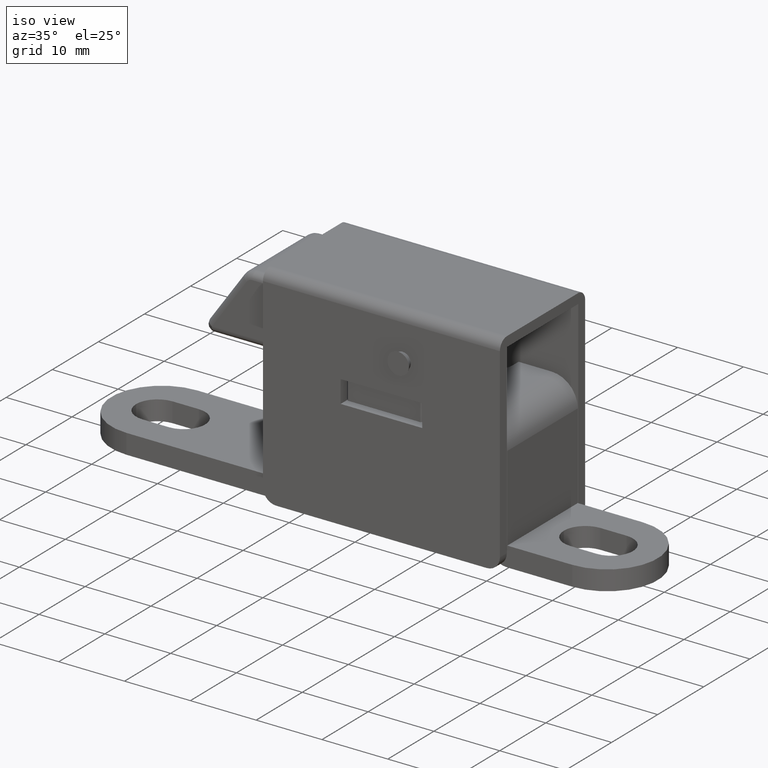
[diagram: clean part render]
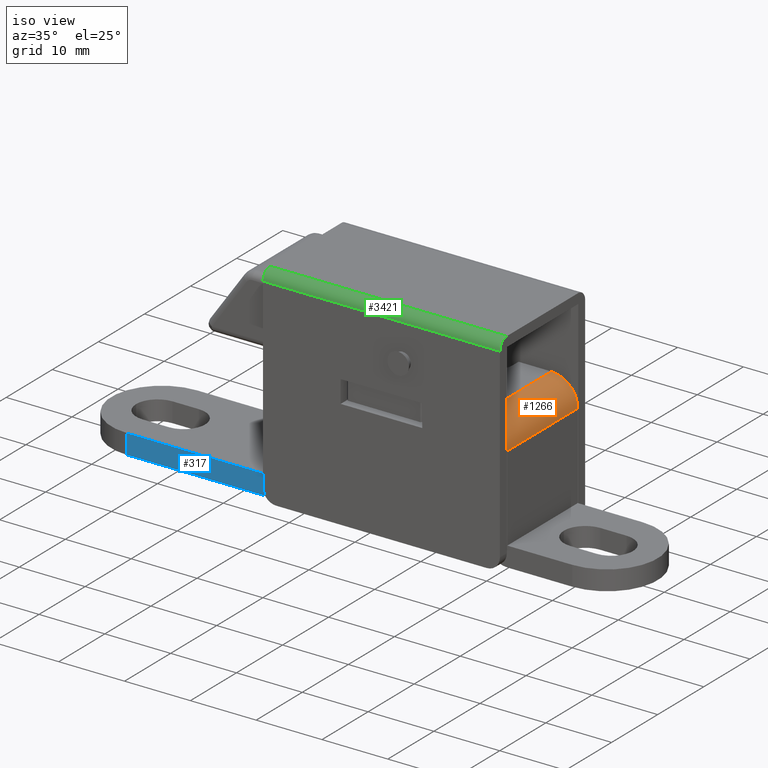
[diagram: same view with three faces highlighted in distinct colors, each labeled with its STEP entity id]
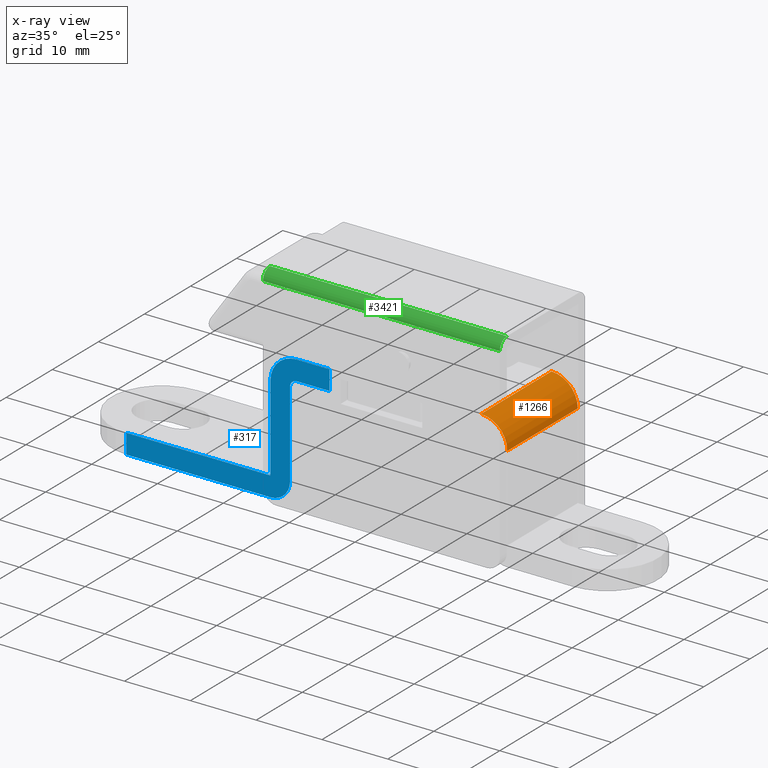
[diagram: x-ray of the same camera — body ghosted, the three highlighted faces saturated]
A machine part, iso view with three faces highlighted in distinct colors.
The next image is the same camera in x-ray (body ghosted, the three faces saturated) — at least one of them is partly hidden behind the body in this view.
Their STEP definitions:

[orange] entity #1266 — the highlighted cylindrical surface (edge-blend (fillet) strip) has radius 4 mm, axis along (-0, -1, -0).
#109 = ORIENTED_EDGE ( 'NONE', *, *, #1790, .T. ) ;
#385 = VECTOR ( 'NONE', #720, 1000.000000000000000 ) ;
#525 = ORIENTED_EDGE ( 'NONE', *, *, #2471, .T. ) ;
#529 = LINE ( 'NONE', #5121, #385 ) ;
#559 = CARTESIAN_POINT ( 'NONE',  ( -8.499999999690000900, -7.650000000000045700, 13.00000000000000200 ) ) ;
#566 = DIRECTION ( 'NONE',  ( 0.0000000000000000000, 0.0000000000000000000, -1.000000000000000000 ) ) ;
#615 = DIRECTION ( 'NONE',  ( 0.0000000000000000000, 1.000000000000000000, 0.0000000000000000000 ) ) ;
#720 = DIRECTION ( 'NONE',  ( -0.0000000000000000000, -1.000000000000000000, -0.0000000000000000000 ) ) ;
#748 = CYLINDRICAL_SURFACE ( 'NONE', #5328, 4.000000000000000000 ) ;
#765 = VERTEX_POINT ( 'NONE', #559 ) ;
#786 = DIRECTION ( 'NONE',  ( 0.0000000000000000000, 1.000000000000000000, 0.0000000000000000000 ) ) ;
#832 = CARTESIAN_POINT ( 'NONE',  ( -8.499999999700001800, -992.3500000000000200, 13.00000000000000200 ) ) ;
#986 = CARTESIAN_POINT ( 'NONE',  ( -12.49999999970000200, -992.3500000000000200, 13.00000000000000200 ) ) ;
#1266 = ADVANCED_FACE ( 'NONE', ( #2267 ), #748, .T. ) ;
#1492 = CIRCLE ( 'NONE', #5600, 4.000000000000000000 ) ;
#1716 = CARTESIAN_POINT ( 'NONE',  ( -12.49999999970000200, 7.649999999999966600, 17.00000000000000000 ) ) ;
#1790 = EDGE_CURVE ( 'NONE', #2797, #2734, #1492, .T. ) ;
#2119 = CARTESIAN_POINT ( 'NONE',  ( -12.49999999970000200, -7.650000000000023400, 17.00000000000000000 ) ) ;
#2160 = DIRECTION ( 'NONE',  ( 0.0000000000000000000, 0.0000000000000000000, -1.000000000000000000 ) ) ;
#2267 = FACE_OUTER_BOUND ( 'NONE', #5567, .T. ) ;
#2471 = EDGE_CURVE ( 'NONE', #765, #2797, #3440, .T. ) ;
#2499 = CARTESIAN_POINT ( 'NONE',  ( -12.49999999970000200, 7.649999999999934600, 13.00000000000000200 ) ) ;
#2734 = VERTEX_POINT ( 'NONE', #1716 ) ;
#2797 = VERTEX_POINT ( 'NONE', #5556 ) ;
#3318 = CIRCLE ( 'NONE', #4567, 4.000000000000000000 ) ;
#3440 = LINE ( 'NONE', #832, #3995 ) ;
#3475 = CARTESIAN_POINT ( 'NONE',  ( -12.49999999970000200, -7.650000000000045700, 13.00000000000000200 ) ) ;
#3747 = DIRECTION ( 'NONE',  ( -0.0000000000000000000, -1.000000000000000000, -0.0000000000000000000 ) ) ;
#3912 = DIRECTION ( 'NONE',  ( 0.0000000000000000000, 0.0000000000000000000, -1.000000000000000000 ) ) ;
#3995 = VECTOR ( 'NONE', #615, 1000.000000000000000 ) ;
#4409 = EDGE_CURVE ( 'NONE', #2734, #4485, #529, .T. ) ;
#4485 = VERTEX_POINT ( 'NONE', #2119 ) ;
#4567 = AXIS2_PLACEMENT_3D ( 'NONE', #3475, #786, #3912 ) ;
#5101 = EDGE_CURVE ( 'NONE', #4485, #765, #3318, .T. ) ;
#5121 = CARTESIAN_POINT ( 'NONE',  ( -12.49999999970000200, -9.300000000000000700, 17.00000000000000000 ) ) ;
#5328 = AXIS2_PLACEMENT_3D ( 'NONE', #986, #3747, #566 ) ;
#5526 = ORIENTED_EDGE ( 'NONE', *, *, #5101, .T. ) ;
#5556 = CARTESIAN_POINT ( 'NONE',  ( -8.499999999690000900, 7.649999999999934600, 13.00000000000000200 ) ) ;
#5567 = EDGE_LOOP ( 'NONE', ( #5526, #525, #109, #5586 ) ) ;
#5586 = ORIENTED_EDGE ( 'NONE', *, *, #4409, .T. ) ;
#5588 = DIRECTION ( 'NONE',  ( -0.0000000000000000000, -1.000000000000000000, -0.0000000000000000000 ) ) ;
#5600 = AXIS2_PLACEMENT_3D ( 'NONE', #2499, #5588, #2160 ) ;

[blue] entity #317 — the highlighted planar face has unit normal (0, 1, 0).
#10 = DIRECTION ( 'NONE',  ( 0.0000000000000000000, 1.000000000000000000, 0.0000000000000000000 ) ) ;
#114 = CARTESIAN_POINT ( 'NONE',  ( -43.29999999969999900, -7.650000000000000400, 14.00000000000000000 ) ) ;
#122 = DIRECTION ( 'NONE',  ( -0.0000000000000000000, 1.000000000000000000, 0.0000000000000000000 ) ) ;
#190 = VECTOR ( 'NONE', #626, 1000.000000000000000 ) ;
#209 = VERTEX_POINT ( 'NONE', #1792 ) ;
#263 = ORIENTED_EDGE ( 'NONE', *, *, #2798, .T. ) ;
#275 = VERTEX_POINT ( 'NONE', #3408 ) ;
#280 = ORIENTED_EDGE ( 'NONE', *, *, #1033, .F. ) ;
#286 = EDGE_CURVE ( 'NONE', #4209, #2113, #3307, .T. ) ;
#317 = ADVANCED_FACE ( 'NONE', ( #1963 ), #620, .F. ) ;
#404 = VERTEX_POINT ( 'NONE', #3277 ) ;
#435 = AXIS2_PLACEMENT_3D ( 'NONE', #2699, #10, #3145 ) ;
#496 = EDGE_CURVE ( 'NONE', #3436, #209, #2642, .T. ) ;
#546 = AXIS2_PLACEMENT_3D ( 'NONE', #2802, #122, #1950 ) ;
#620 = PLANE ( 'NONE',  #546 ) ;
#626 = DIRECTION ( 'NONE',  ( 1.000000000000000000, 0.0000000000000000000, -0.0000000000000000000 ) ) ;
#678 = DIRECTION ( 'NONE',  ( 1.000000000000000000, 0.0000000000000000000, 0.0000000000000000000 ) ) ;
#704 = DIRECTION ( 'NONE',  ( 0.0000000000000000000, -0.0000000000000000000, 1.000000000000000000 ) ) ;
#730 = LINE ( 'NONE', #3837, #3110 ) ;
#779 = DIRECTION ( 'NONE',  ( 0.0000000000000000000, 1.000000000000000000, 0.0000000000000000000 ) ) ;
#870 = VERTEX_POINT ( 'NONE', #4874 ) ;
#915 = CARTESIAN_POINT ( 'NONE',  ( -44.49999999969117700, -7.650000000000000400, 4.913546421588440400E-011 ) ) ;
#1007 = VERTEX_POINT ( 'NONE', #5704 ) ;
#1027 = LINE ( 'NONE', #3335, #2203 ) ;
#1033 = EDGE_CURVE ( 'NONE', #2254, #4209, #1491, .T. ) ;
#1084 = DIRECTION ( 'NONE',  ( -0.0000000000000000000, 0.0000000000000000000, -1.000000000000000000 ) ) ;
#1141 = VECTOR ( 'NONE', #678, 1000.000000000000000 ) ;
#1193 = EDGE_CURVE ( 'NONE', #2113, #5698, #4958, .T. ) ;
#1239 = DIRECTION ( 'NONE',  ( 0.0000000000000000000, 0.0000000000000000000, -1.000000000000000000 ) ) ;
#1277 = LINE ( 'NONE', #2375, #3660 ) ;
#1309 = CARTESIAN_POINT ( 'NONE',  ( -66.34999999964740900, -7.650000000000000400, -3.000000000000000000 ) ) ;
#1401 = ORIENTED_EDGE ( 'NONE', *, *, #496, .F. ) ;
#1491 = CIRCLE ( 'NONE', #3973, 3.000000000000000000 ) ;
#1517 = CARTESIAN_POINT ( 'NONE',  ( -69.43499999959999500, -7.650000000000000400, -3.000000000000000000 ) ) ;
#1622 = ORIENTED_EDGE ( 'NONE', *, *, #2012, .F. ) ;
#1688 = CARTESIAN_POINT ( 'NONE',  ( -40.49999999970000200, -7.650000000000045700, 13.00000000000000200 ) ) ;
#1740 = CARTESIAN_POINT ( 'NONE',  ( -44.49999999970000200, -7.650000000000045700, -3.000000000000497400 ) ) ;
#1792 = CARTESIAN_POINT ( 'NONE',  ( -41.49999999970000900, -7.650000000000034100, 13.00000000000000200 ) ) ;
#1950 = DIRECTION ( 'NONE',  ( 0.0000000000000000000, -0.0000000000000000000, 1.000000000000000000 ) ) ;
#1963 = FACE_OUTER_BOUND ( 'NONE', #3303, .T. ) ;
#2012 = EDGE_CURVE ( 'NONE', #3633, #1007, #730, .T. ) ;
#2113 = VERTEX_POINT ( 'NONE', #1309 ) ;
#2180 = LINE ( 'NONE', #2908, #1141 ) ;
#2203 = VECTOR ( 'NONE', #3406, 1000.000000000000000 ) ;
#2254 = VERTEX_POINT ( 'NONE', #2579 ) ;
#2264 = VECTOR ( 'NONE', #1084, 1000.000000000000000 ) ;
#2375 = CARTESIAN_POINT ( 'NONE',  ( -35.49999999989999800, -7.650000000000000400, -5.000000000000000000 ) ) ;
#2413 = DIRECTION ( 'NONE',  ( 0.0000000000000000000, -0.0000000000000000000, 1.000000000000000000 ) ) ;
#2579 = CARTESIAN_POINT ( 'NONE',  ( -41.49999999970000200, -7.650000000000034100, -9.952151490593335800E-013 ) ) ;
#2642 = CIRCLE ( 'NONE', #3417, 1.000000000000000900 ) ;
#2685 = EDGE_CURVE ( 'NONE', #275, #870, #1027, .T. ) ;
#2699 = CARTESIAN_POINT ( 'NONE',  ( -40.49999999970000200, -7.650000000000045700, 13.00000000000000200 ) ) ;
#2710 = LINE ( 'NONE', #114, #190 ) ;
#2766 = DIRECTION ( 'NONE',  ( -1.000000000000000000, -0.0000000000000000000, -0.0000000000000000000 ) ) ;
#2798 = EDGE_CURVE ( 'NONE', #3436, #404, #2710, .T. ) ;
#2802 = CARTESIAN_POINT ( 'NONE',  ( -69.43499999959999500, -7.650000000000000400, -5.000000000000000000 ) ) ;
#2908 = CARTESIAN_POINT ( 'NONE',  ( -69.43499999959999500, -7.650000000000000400, 7.364595044911936800E-011 ) ) ;
#3110 = VECTOR ( 'NONE', #704, 1000.000000000000000 ) ;
#3143 = CARTESIAN_POINT ( 'NONE',  ( -66.34999999965000900, -7.650000000000000400, 7.364597335920968900E-011 ) ) ;
#3145 = DIRECTION ( 'NONE',  ( 0.0000000000000000000, 0.0000000000000000000, -1.000000000000000000 ) ) ;
#3277 = CARTESIAN_POINT ( 'NONE',  ( -35.49999999989921000, -7.650000000000000400, 13.99999999999999800 ) ) ;
#3302 = ORIENTED_EDGE ( 'NONE', *, *, #4933, .F. ) ;
#3303 = EDGE_LOOP ( 'NONE', ( #3860, #4056, #280, #3341, #1401, #263, #4526, #4137, #3336, #1622, #3302 ) ) ;
#3307 = LINE ( 'NONE', #1517, #5632 ) ;
#3335 = CARTESIAN_POINT ( 'NONE',  ( -9.699999999679999300, -7.650000000000000400, 17.00000000000000000 ) ) ;
#3336 = ORIENTED_EDGE ( 'NONE', *, *, #4674, .F. ) ;
#3341 = ORIENTED_EDGE ( 'NONE', *, *, #4365, .F. ) ;
#3406 = DIRECTION ( 'NONE',  ( -1.000000000000000000, 0.0000000000000000000, -0.0000000000000000000 ) ) ;
#3408 = CARTESIAN_POINT ( 'NONE',  ( -35.49999999989921000, -7.650000000000000400, 17.00000000000000000 ) ) ;
#3417 = AXIS2_PLACEMENT_3D ( 'NONE', #1688, #4350, #1239 ) ;
#3436 = VERTEX_POINT ( 'NONE', #3847 ) ;
#3467 = DIRECTION ( 'NONE',  ( 0.0000000000000000000, 0.0000000000000000000, -1.000000000000000000 ) ) ;
#3633 = VERTEX_POINT ( 'NONE', #915 ) ;
#3660 = VECTOR ( 'NONE', #5464, 1000.000000000000000 ) ;
#3761 = CARTESIAN_POINT ( 'NONE',  ( -41.49999999970000900, -7.650000000000000400, -5.000000000000000000 ) ) ;
#3817 = VECTOR ( 'NONE', #2413, 1000.000000000000000 ) ;
#3837 = CARTESIAN_POINT ( 'NONE',  ( -44.49999999970000200, -7.650000000000000400, -5.000000000000000000 ) ) ;
#3838 = EDGE_CURVE ( 'NONE', #275, #404, #1277, .T. ) ;
#3847 = CARTESIAN_POINT ( 'NONE',  ( -40.49999999970000200, -7.650000000000023400, 14.00000000000000000 ) ) ;
#3860 = ORIENTED_EDGE ( 'NONE', *, *, #1193, .F. ) ;
#3903 = CARTESIAN_POINT ( 'NONE',  ( -44.49999999970000200, -7.650000000000045700, -9.947598300639999100E-013 ) ) ;
#3973 = AXIS2_PLACEMENT_3D ( 'NONE', #3903, #779, #3467 ) ;
#4056 = ORIENTED_EDGE ( 'NONE', *, *, #286, .F. ) ;
#4137 = ORIENTED_EDGE ( 'NONE', *, *, #2685, .T. ) ;
#4209 = VERTEX_POINT ( 'NONE', #1740 ) ;
#4350 = DIRECTION ( 'NONE',  ( -0.0000000000000000000, -1.000000000000000000, -0.0000000000000000000 ) ) ;
#4365 = EDGE_CURVE ( 'NONE', #209, #2254, #5655, .T. ) ;
#4526 = ORIENTED_EDGE ( 'NONE', *, *, #3838, .F. ) ;
#4625 = CARTESIAN_POINT ( 'NONE',  ( -66.34999999960000100, -7.650000000000000400, -5.000000000000000000 ) ) ;
#4674 = EDGE_CURVE ( 'NONE', #1007, #870, #4880, .T. ) ;
#4874 = CARTESIAN_POINT ( 'NONE',  ( -40.49999999970000200, -7.650000000000023400, 17.00000000000000000 ) ) ;
#4880 = CIRCLE ( 'NONE', #435, 4.000000000000000000 ) ;
#4933 = EDGE_CURVE ( 'NONE', #5698, #3633, #2180, .T. ) ;
#4958 = LINE ( 'NONE', #4625, #3817 ) ;
#5464 = DIRECTION ( 'NONE',  ( -0.0000000000000000000, 0.0000000000000000000, -1.000000000000000000 ) ) ;
#5632 = VECTOR ( 'NONE', #2766, 1000.000000000000000 ) ;
#5655 = LINE ( 'NONE', #3761, #2264 ) ;
#5698 = VERTEX_POINT ( 'NONE', #3143 ) ;
#5704 = CARTESIAN_POINT ( 'NONE',  ( -44.49999999970000200, -7.650000000000034100, 13.00000000000000200 ) ) ;

[green] entity #3421 — the highlighted cylindrical surface (edge-blend (fillet) strip) has radius 1.5 mm, axis along (1, 0, 0).
#218 = VERTEX_POINT ( 'NONE', #1737 ) ;
#409 = CARTESIAN_POINT ( 'NONE',  ( -48.09999999930000300, -9.250000000000000000, 27.29999999999999700 ) ) ;
#584 = ORIENTED_EDGE ( 'NONE', *, *, #3428, .F. ) ;
#723 = DIRECTION ( 'NONE',  ( 0.0000000000000000000, 0.0000000000000000000, -1.000000000000000000 ) ) ;
#831 = DIRECTION ( 'NONE',  ( -1.000000000000000000, 0.0000000000000000000, 0.0000000000000000000 ) ) ;
#867 = DIRECTION ( 'NONE',  ( 1.000000000000000000, 0.0000000000000000000, -0.0000000000000000000 ) ) ;
#1155 = DIRECTION ( 'NONE',  ( 1.000000000000000000, -0.0000000000000000000, -0.0000000000000000000 ) ) ;
#1737 = CARTESIAN_POINT ( 'NONE',  ( -44.49999999929999500, -9.250000000000000000, 27.29999999999999700 ) ) ;
#1871 = CARTESIAN_POINT ( 'NONE',  ( -44.49999999929998800, -7.750000000000000000, 28.80000000000000800 ) ) ;
#2078 = VERTEX_POINT ( 'NONE', #4554 ) ;
#2105 = EDGE_CURVE ( 'NONE', #218, #4858, #3931, .T. ) ;
#2214 = DIRECTION ( 'NONE',  ( -1.000000000000000000, 0.0000000000000000000, 0.0000000000000000000 ) ) ;
#2220 = ORIENTED_EDGE ( 'NONE', *, *, #3546, .T. ) ;
#2477 = CARTESIAN_POINT ( 'NONE',  ( 955.5000000009999900, -7.750000000000000000, 27.30000000000000100 ) ) ;
#2519 = CARTESIAN_POINT ( 'NONE',  ( -44.49999999929998800, -7.750000000000000000, 27.30000000000000100 ) ) ;
#2610 = ORIENTED_EDGE ( 'NONE', *, *, #4587, .T. ) ;
#2612 = VECTOR ( 'NONE', #867, 1000.000000000000000 ) ;
#2616 = CARTESIAN_POINT ( 'NONE',  ( 955.5000000009999900, -7.750000000000000000, 28.80000000000000400 ) ) ;
#2629 = LINE ( 'NONE', #2616, #3673 ) ;
#2895 = CIRCLE ( 'NONE', #3828, 1.500000000000001300 ) ;
#2977 = DIRECTION ( 'NONE',  ( 0.0000000000000000000, -1.156482317317870300E-015, -1.000000000000000000 ) ) ;
#3421 = ADVANCED_FACE ( 'NONE', ( #5509 ), #3934, .T. ) ;
#3428 = EDGE_CURVE ( 'NONE', #218, #5268, #2895, .T. ) ;
#3546 = EDGE_CURVE ( 'NONE', #4858, #2078, #4407, .T. ) ;
#3673 = VECTOR ( 'NONE', #831, 1000.000000000000000 ) ;
#3764 = CARTESIAN_POINT ( 'NONE',  ( -8.499999999689988400, -9.250000000000000000, 27.29999999999999700 ) ) ;
#3828 = AXIS2_PLACEMENT_3D ( 'NONE', #2519, #5606, #2977 ) ;
#3931 = LINE ( 'NONE', #409, #2612 ) ;
#3934 = CYLINDRICAL_SURFACE ( 'NONE', #4109, 1.500000000000001300 ) ;
#4109 = AXIS2_PLACEMENT_3D ( 'NONE', #2477, #1155, #723 ) ;
#4407 = CIRCLE ( 'NONE', #5169, 1.500000000000001300 ) ;
#4554 = CARTESIAN_POINT ( 'NONE',  ( -8.499999999689983100, -7.750000000000000000, 28.80000000000000800 ) ) ;
#4587 = EDGE_CURVE ( 'NONE', #2078, #5268, #2629, .T. ) ;
#4660 = ORIENTED_EDGE ( 'NONE', *, *, #2105, .T. ) ;
#4724 = EDGE_LOOP ( 'NONE', ( #2220, #2610, #584, #4660 ) ) ;
#4848 = CARTESIAN_POINT ( 'NONE',  ( -8.499999999689977800, -7.750000000000000000, 27.30000000000000100 ) ) ;
#4858 = VERTEX_POINT ( 'NONE', #3764 ) ;
#5169 = AXIS2_PLACEMENT_3D ( 'NONE', #4848, #2214, #5313 ) ;
#5268 = VERTEX_POINT ( 'NONE', #1871 ) ;
#5313 = DIRECTION ( 'NONE',  ( 0.0000000000000000000, -1.156482317317870300E-015, -1.000000000000000000 ) ) ;
#5509 = FACE_OUTER_BOUND ( 'NONE', #4724, .T. ) ;
#5606 = DIRECTION ( 'NONE',  ( -1.000000000000000000, 0.0000000000000000000, 0.0000000000000000000 ) ) ;